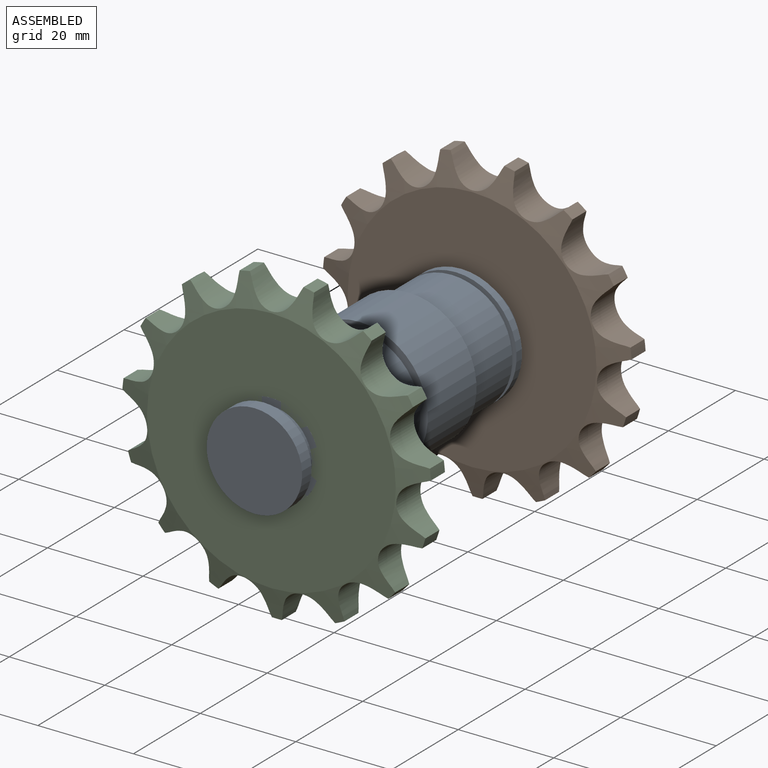
[diagram: assembled view]
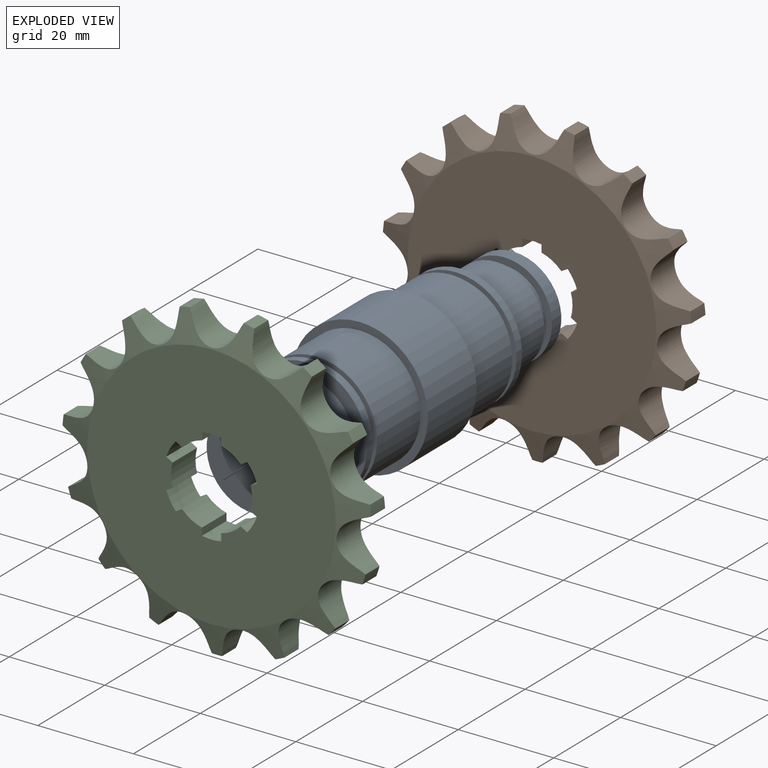
[diagram: exploded view]
GUIDED TOUR — MATED ASSEMBLY (Onshape document 5847723f11d509103a44a21b, AutoMate assembly 5847723f11d509103a44a21b_6adbe47272c6d4bda359038e_4d4b9d05792d15762a6dbdb2_default)

This assembly has 3 components, labeled P0..P2 below (a component is one placed occurrence of a part; the same part can appear more than once), held together by 2 mates. A mate is a constraint between two components; its type names the relative motion it leaves free:
  SLIDER — leaves translation along the listed axis free.
Axis/direction vectors are unit vectors and 'through' points are millimeter coordinates, both in the assembly's world frame.

MATES
  1. SLIDER "Slider 1": P1 <-> P0, axis (0.000, 1.000, 0.000) through (10.89, 21.63, 18.48) mm
  2. SLIDER "Slider 2": P2 <-> P0, axis (0.000, -1.000, 0.000) through (10.89, -45.71, 18.48) mm

ASSEMBLY ORDER
  1. P0 — the base component [order heuristic]
  2. P1 [order heuristic]
  3. P2 [order heuristic]
Order-tag legend:
  [order heuristic] — this assembly is geometrically interlocked (no collision-free removal order exists), so components are listed in mate-graph order; insertion feasibility is not verified.

Of the 3 components, 1 carries the full construction recipe — the FeatureScript program that regenerates the part's solid from scratch; the rest are supplied as boundary geometry only.
Each toured component is shown spotlighted twice — in the assembled view, then in the exploded view, where a leader line traces a displaced component back to its assembled socket (saturated green if recipe-attached, orange if geometry-only; every other component desaturated gray) — followed by its recipe or geometry summary and the mates that hold it.
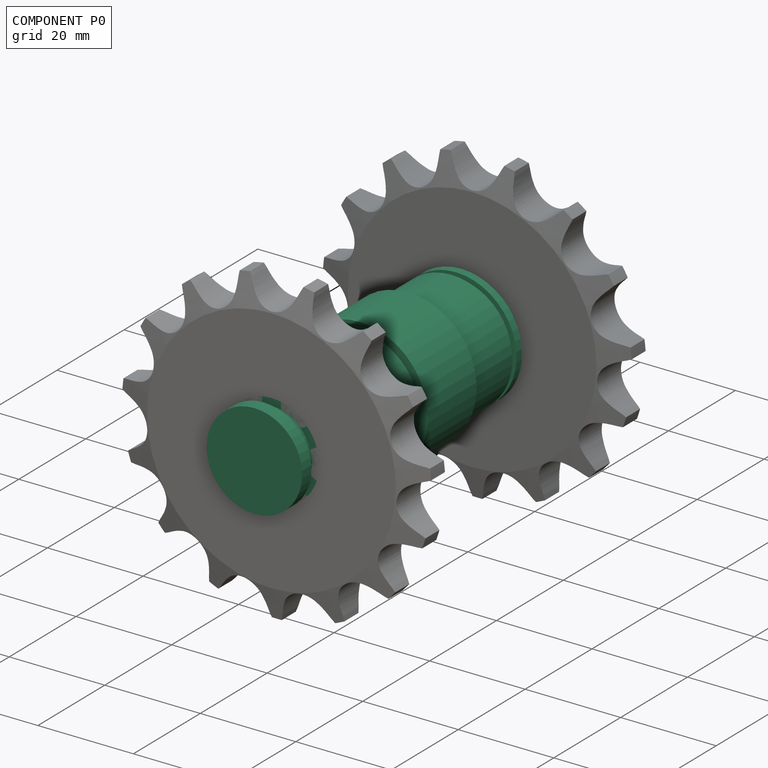
[diagram: component P0 — assembled]
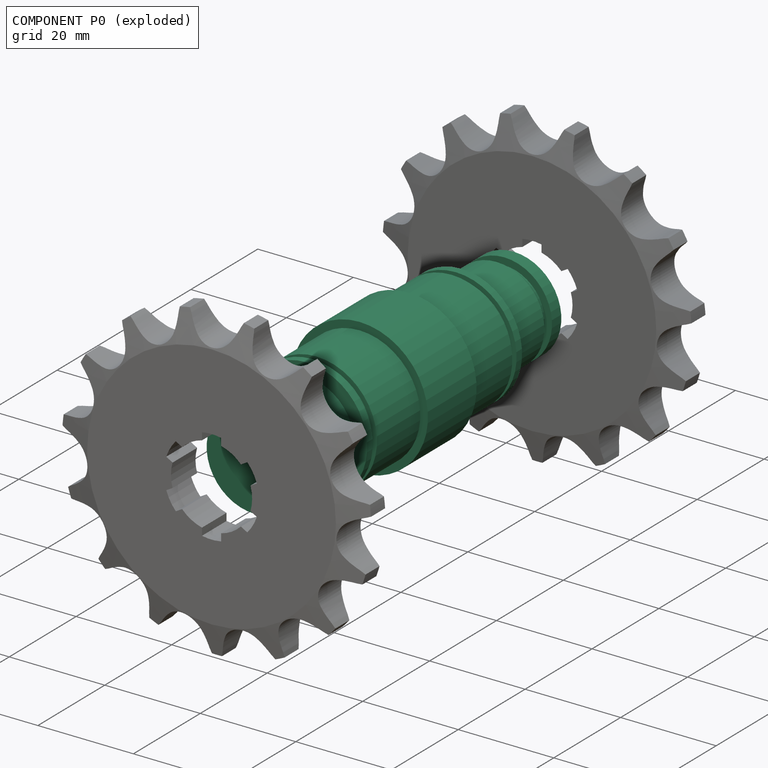
[diagram: component P0 — exploded]
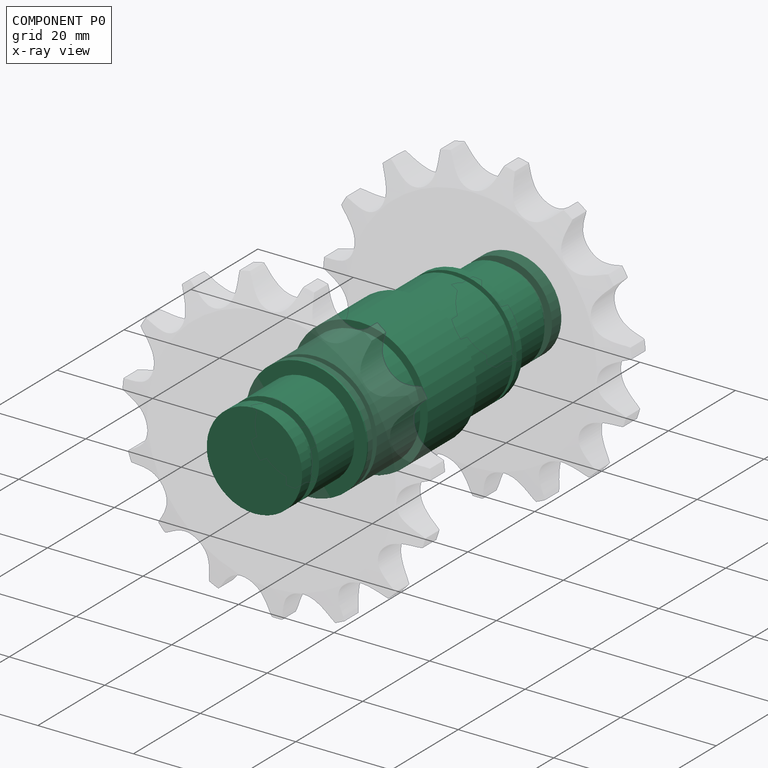
[diagram: component P0 — x-ray view]
COMPONENT P0 — recipe-attached (CADFS 00369977, mesh-verified: the recipe's output STEP matches this component's geometry to below the mesh-comparison resolution (tessellation chordal tolerance ~0.131 mm)).
Held by: SLIDER mate "Slider 1" to P1; SLIDER mate "Slider 2" to P2.
Construction recipe (FeatureScript — the CAD program that rebuilds this solid; sketch coordinates are in the units given by the * unit suffixes, e.g. mm):

FeatureScript 2221;
import(path : "onshape/std/geometry.fs", version : "2221.0");
import(path : "onshape/std/common.fs", version : "2221.0");
const mm = millimeter;
const VERTEX = EntityType.VERTEX;
const EDGE = EntityType.EDGE;
const FACE = EntityType.FACE;
const BODY = EntityType.BODY;
function v(x, y){return vector(x, y);}
function OD(order){return orderDisambiguation(order);}
function OSD(set){return originalSetDisambiguation(set);}
function TD(topology){return topologyDisambiguation(topology);}
function TDD(query){return trueDependencyDisambiguation(query);}
function sQuery(a, b, c) {return sketchEntityQuery(a, b, c);}

annotation { "Feature Type Name" : "Feature", "Feature Type Description" : "" }
export const myFeature = defineFeature(function(context is Context, id is Id, definition is map)
    precondition{}
    {
        {
            var Q0;
            Q0=qCreatedBy(makeId("Right.planeOp"),FACE);
            var sketch = newSketch(context, id + "F0", { "sketchPlane" : qUnion([Q0])});
            skLineSegment(sketch, "E0", {"start": v(-30.43, 0) * mm, "end": v(-23.15, 0) * mm, "construction": true});
            skLineSegment(sketch, "E1", {"start": v(0, 0) * mm, "end": v(30.43, 0) * mm, "construction": true});
            skLineSegment(sketch, "E2.bottom", {"start": v(-38.75, 10) * mm, "end": v(-35.96, 10) * mm});
            skLineSegment(sketch, "E3", {"start": v(-38.75, 10) * mm, "end": v(-38.75, 0) * mm});
            skLineSegment(sketch, "E4.bottom", {"start": v(-23.15, 12.7) * mm, "end": v(-21.5, 12.7) * mm});
            skLineSegment(sketch, "E4.left", {"start": v(-23.15, 12.7) * mm, "end": v(-23.15, 10) * mm});
            skLineSegment(sketch, "E4.right", {"start": v(-7.28, 14.29) * mm, "end": v(-7.28, 0) * mm});
            skLineSegment(sketch, "E5.bottom", {"start": v(-7.28, 14.29) * mm, "end": v(0, 14.29) * mm});
            skLineSegment(sketch, "E6.MirrorCS", {"start": v(49.78, 0) * mm, "end": v(0, 0) * mm, "construction": true});
            skLineSegment(sketch, "E7.top", {"start": v(-35.96, 8.5) * mm, "end": v(-33.67, 8.5) * mm});
            skLineSegment(sketch, "E7.left", {"start": v(-35.96, 10) * mm, "end": v(-35.96, 8.5) * mm});
            skLineSegment(sketch, "E7.right", {"start": v(-33.67, 10) * mm, "end": v(-33.67, 8.5) * mm});
            skLineSegment(sketch, "E8.bottom", {"start": v(-21.5, 11.73) * mm, "end": v(-20.23, 11.73) * mm});
            skLineSegment(sketch, "E9", {"start": v(-21.5, 11.73) * mm, "end": v(-21.5, 12.7) * mm});
            skLineSegment(sketch, "E10", {"start": v(-20.23, 11.73) * mm, "end": v(-20.23, 12.7) * mm});
            skLineSegment(sketch, "E11.trimOffspring", {"start": v(-20.23, 12.7) * mm, "end": v(-7.28, 12.7) * mm});
            skLineSegment(sketch, "E12", {"start": v(-38.75, 0) * mm, "end": v(-23.15, 0) * mm});
            skLineSegment(sketch, "E13", {"start": v(-33.67, 10) * mm, "end": v(-23.15, 10) * mm});
            skLineSegment(sketch, "E14", {"start": v(-23.15, 10) * mm, "end": v(-23.15, 0) * mm});
            skLineSegment(sketch, "E15", {"start": v(0, 14.29) * mm, "end": v(0, 0) * mm, "construction": true});
            skLineSegment(sketch, "E16", {"start": v(-7.28, 0) * mm, "end": v(0, 0) * mm});
            skLineSegment(sketch, "E17", {"start": v(-23.15, 0) * mm, "end": v(-7.28, 0) * mm});
            skLineSegment(sketch, "E18.MirrorCS", {"start": v(30.43, 0) * mm, "end": v(23.15, 0) * mm, "construction": true});
            skLineSegment(sketch, "E19.MirrorCS", {"start": v(21.5, 11.73) * mm, "end": v(21.5, 12.7) * mm});
            skLineSegment(sketch, "E20.MirrorCS", {"start": v(35.96, 10) * mm, "end": v(35.96, 8.5) * mm});
            skLineSegment(sketch, "E21.MirrorCS", {"start": v(23.15, 12.7) * mm, "end": v(23.15, 10) * mm});
            skLineSegment(sketch, "E22.MirrorCS", {"start": v(7.28, 14.29) * mm, "end": v(7.28, 0) * mm});
            skLineSegment(sketch, "E23.MirrorCS", {"start": v(7.28, 14.29) * mm, "end": v(0, 14.29) * mm});
            skLineSegment(sketch, "E24.MirrorCS", {"start": v(7.28, 0) * mm, "end": v(0, 0) * mm});
            skLineSegment(sketch, "E25.MirrorCS", {"start": v(33.67, 10) * mm, "end": v(23.15, 10) * mm});
            skLineSegment(sketch, "E26.MirrorCS", {"start": v(38.75, 10) * mm, "end": v(38.75, 0) * mm});
            skLineSegment(sketch, "E27.MirrorCS", {"start": v(23.15, 12.7) * mm, "end": v(21.5, 12.7) * mm});
            skLineSegment(sketch, "E28.MirrorCS", {"start": v(38.75, 0) * mm, "end": v(23.15, 0) * mm});
            skLineSegment(sketch, "E29.MirrorCS", {"start": v(33.67, 10) * mm, "end": v(33.67, 8.5) * mm});
            skLineSegment(sketch, "E30.MirrorCS", {"start": v(20.23, 12.7) * mm, "end": v(7.28, 12.7) * mm});
            skLineSegment(sketch, "E31.MirrorCS", {"start": v(21.5, 11.73) * mm, "end": v(20.23, 11.73) * mm});
            skLineSegment(sketch, "E32.MirrorCS", {"start": v(23.15, 10) * mm, "end": v(23.15, 0) * mm});
            skLineSegment(sketch, "E33.MirrorCS", {"start": v(38.75, 10) * mm, "end": v(35.96, 10) * mm});
            skLineSegment(sketch, "E34.MirrorCS", {"start": v(35.96, 8.5) * mm, "end": v(33.67, 8.5) * mm});
            skLineSegment(sketch, "E35.MirrorCS", {"start": v(23.15, 0) * mm, "end": v(7.28, 0) * mm});
            skLineSegment(sketch, "E36.MirrorCS", {"start": v(20.23, 11.73) * mm, "end": v(20.23, 12.7) * mm});
            skSolve(sketch);
        }
        {
            var Q0;
            Q0=makeQuery(id+"F0.imprint","IMPRINT",FACE,{"disambiguationData":[TD([[makeQuery(id+"F0.imprint","IMPRINT",EDGE,{"derivedFrom":sQuery(id+"F0.wireOp",EDGE,"E4.bottom")}),-1.0]])]});
            var Q1;
            {var subQ1=sQuery(id+"F0.wireOp",EDGE,"E5.bottom");Q1=makeQuery(id+"F0.imprint","IMPRINT",FACE,{"disambiguationData":[TD([[makeQuery(id+"F0.imprint","IMPRINT",EDGE,{"derivedFrom":subQ1}),-1.0]])]});}
            var Q2;
            Q2=makeQuery(id+"F0.imprint","IMPRINT",FACE,{"disambiguationData":[TD([[makeQuery(id+"F0.imprint","IMPRINT",EDGE,{"derivedFrom":sQuery(id+"F0.wireOp",EDGE,"E19.MirrorCS")}),-1.0]])]});
            var Q3;
            Q3=makeQuery(id+"F0.imprint","IMPRINT",FACE,{"disambiguationData":[TD([[makeQuery(id+"F0.imprint","IMPRINT",EDGE,{"derivedFrom":sQuery(id+"F0.wireOp",EDGE,"E20.MirrorCS")}),1.0]])]});
            var Q4;
            Q4=makeQuery(id+"F0.imprint","IMPRINT",FACE,{"disambiguationData":[TD([[makeQuery(id+"F0.imprint","IMPRINT",EDGE,{"derivedFrom":sQuery(id+"F0.wireOp",EDGE,"E2.bottom")}),-1.0]])]});
            var Q5;
            Q5=sQuery(id+"F0.wireOp",EDGE,"E6.MirrorCS");
            revolve(context, id + "F1", {"entities" : qUnion([Q0, Q1, Q2, Q3, Q4]), "axis" : qUnion([Q5]), "revolveType" : RevolveType.FULL});
        }
    });
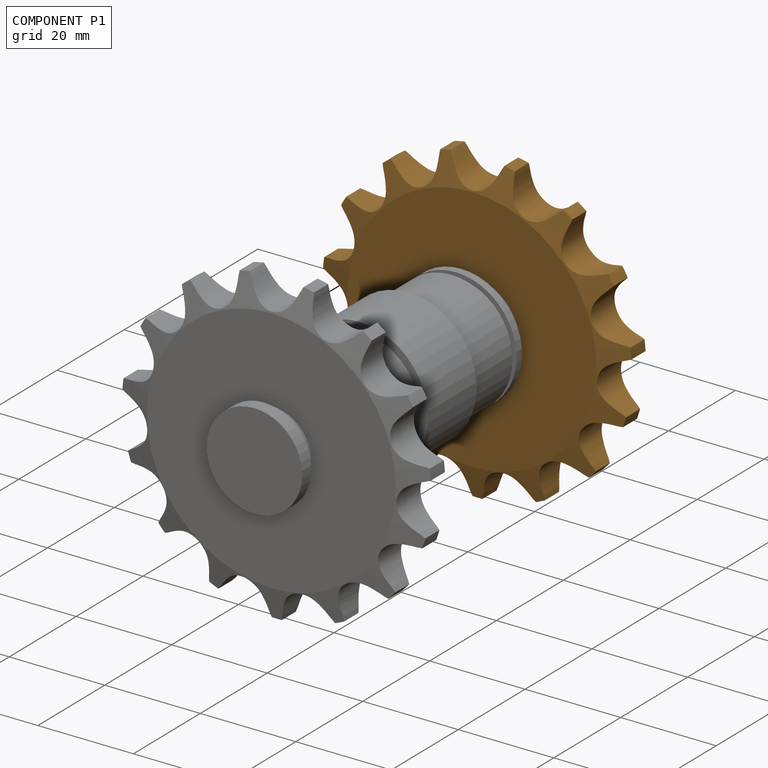
[diagram: component P1 — assembled]
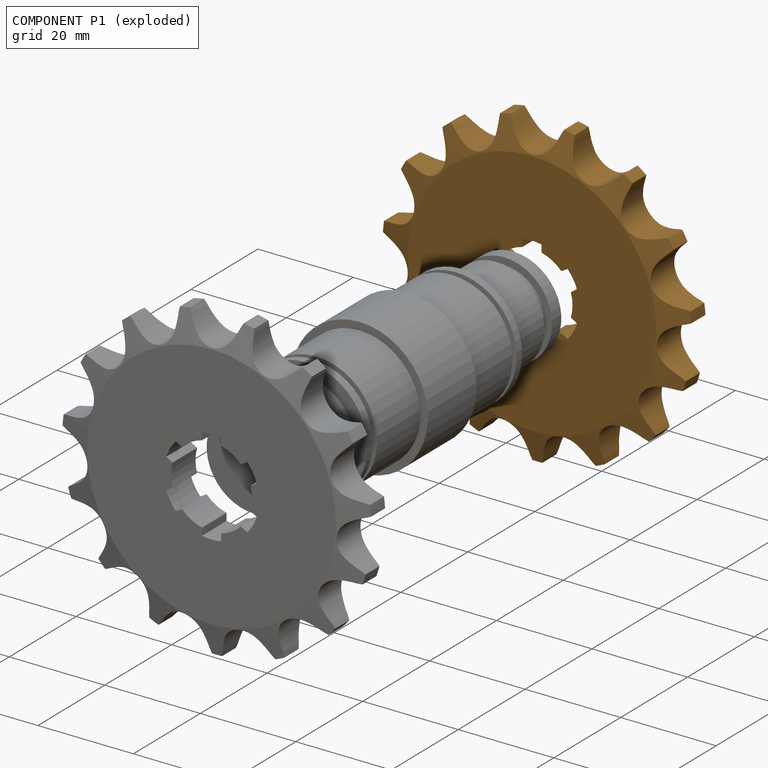
[diagram: component P1 — exploded]
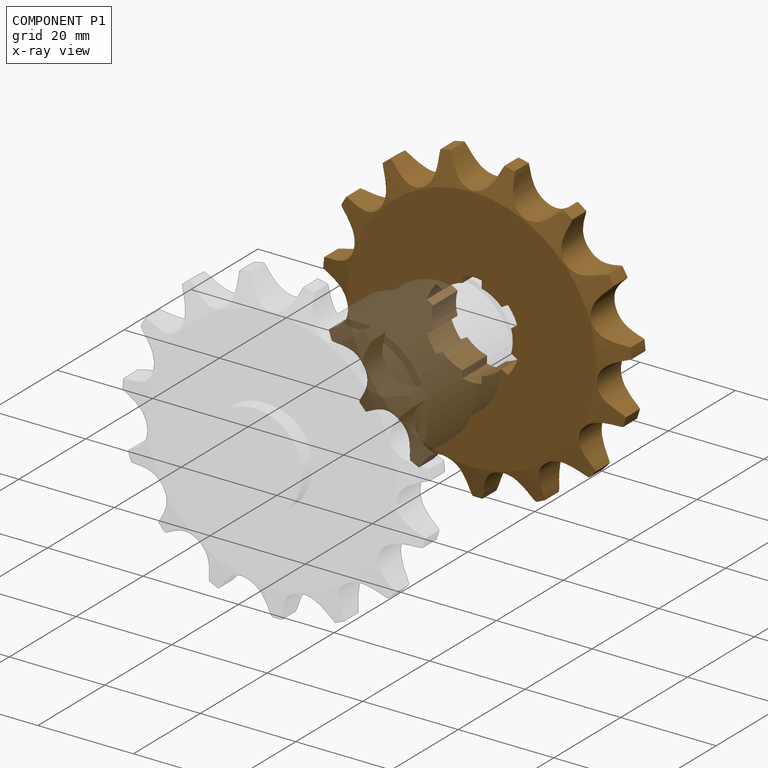
[diagram: component P1 — x-ray view]
COMPONENT P1 — geometry summary (no construction recipe available for this part):
  bounding box: 64.8 x 64.8 x 7.3 mm
  B-rep topology: 1 solid, 148 faces, 876 edges
  volume: 16376 mm^3 (53% of its bounding box)
  symmetry: 2-fold rotationally symmetric about the z axis; mirror-symmetric across its x mid-plane, y mid-plane
Held by: SLIDER mate "Slider 1" to P0.
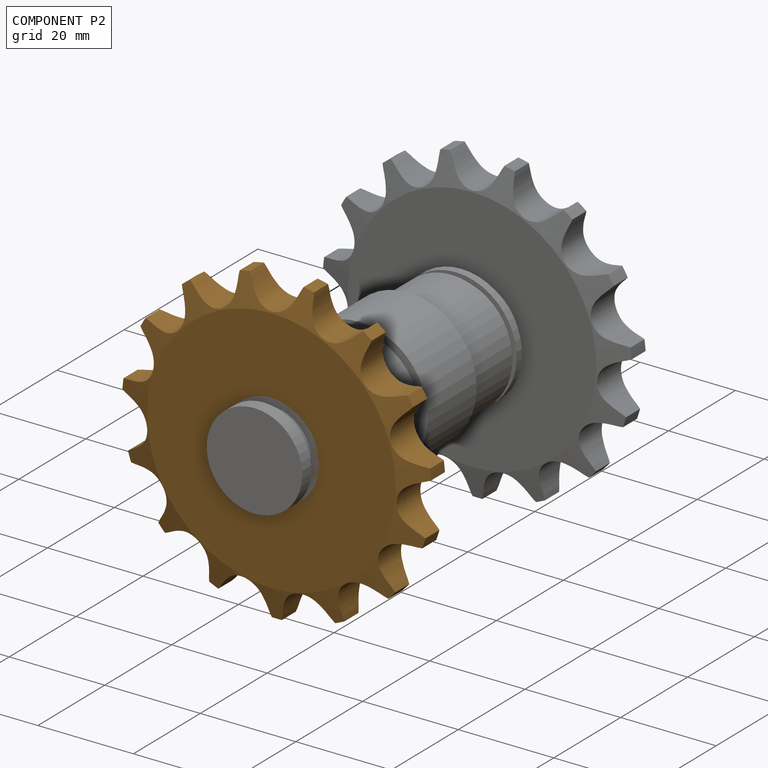
[diagram: component P2 — assembled]
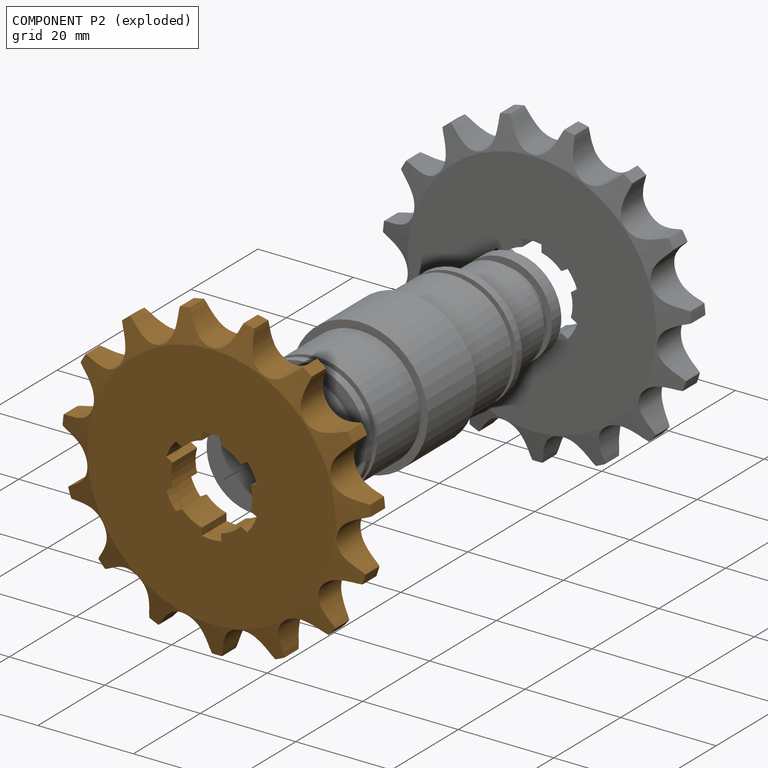
[diagram: component P2 — exploded]
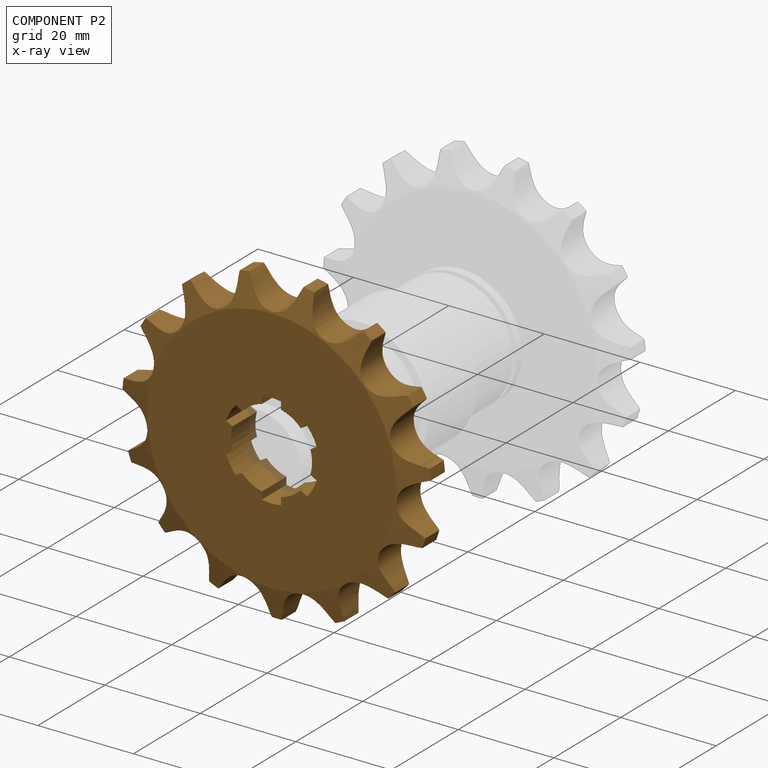
[diagram: component P2 — x-ray view]
COMPONENT P2 — geometry summary (no construction recipe available for this part):
  bounding box: 64.8 x 64.8 x 7.3 mm
  B-rep topology: 1 solid, 148 faces, 876 edges
  volume: 16376 mm^3 (53% of its bounding box)
  symmetry: 2-fold rotationally symmetric about the z axis; mirror-symmetric across its x mid-plane, y mid-plane
Held by: SLIDER mate "Slider 2" to P0.
PROVENANCE & LICENSES
Assembly (occurrences, transforms, mates, per-part STEP geometry): AutoMate dataset, Zenodo record 7776208, CC0.
Construction recipes: CADFS (HuggingFace VladPyatov/CADFS, CC-BY-4.0, layered over the ABC dataset), FeatureScript reconstruction programs keyed by ABC model id.
Join: ABC meta listings map ABC model id -> Onshape documentId; within a shared document, parts are matched by geometric signature (bounding-box dims + volume at 0.1% relative tolerance, exact B-rep face/solid counts).
Verification: 1 of this assembly's 3 components carries a recipe attachment, and every attachment is mesh-verified: the CADFS STEP and the AutoMate member STEP were compared as meshes in their shared local frame (symmetric sampled-point-to-mesh distance); worst across the 1 attachment: below the mesh-comparison resolution (tessellation chordal tolerance ~0.131 mm) on a 87 mm part.
Renders: orthographic iso camera (az 35 / el 25); the floor grid conveys scale (grid pitch printed in each image; no ruler). In the exploded view each component is displaced by its stored offset vector: the offsets alone carry the explosion direction (mate normal/axis signs are not orientation cues and do not encode it), and separation distances are assigned per mate-chain, not proportionally to assembly-order depth.
